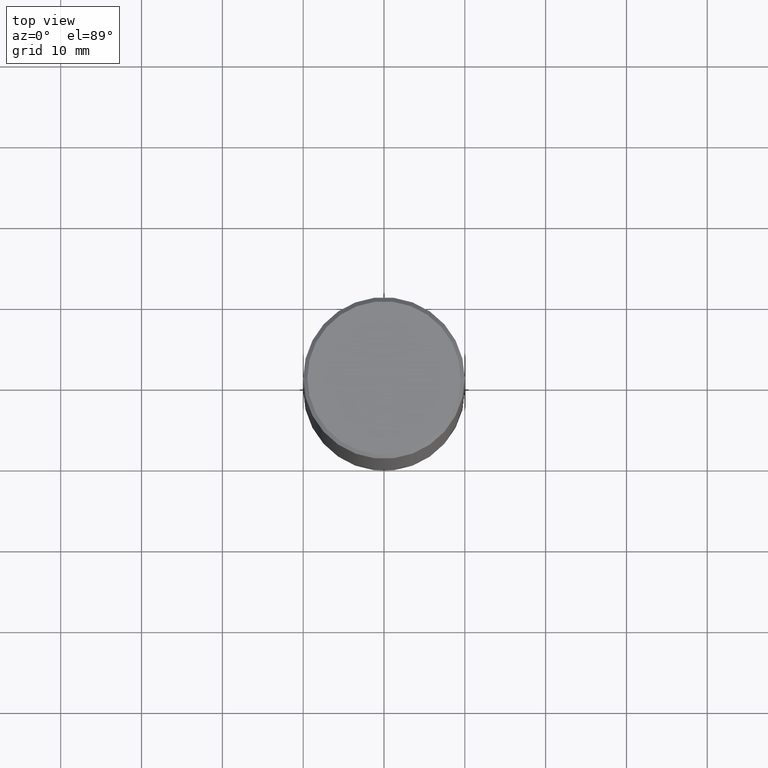
[diagram: clean part render]
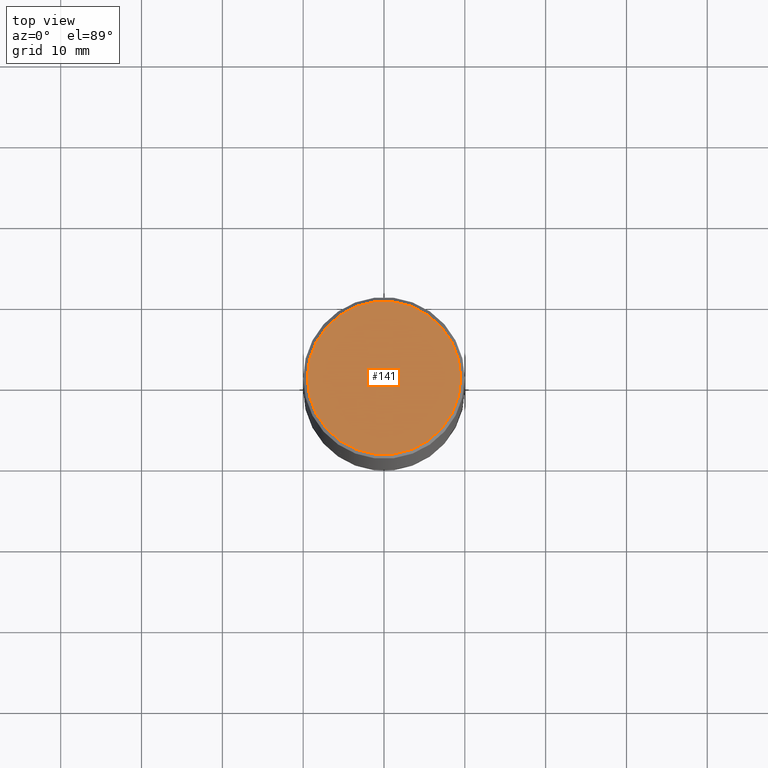
[diagram: same view with one face highlighted and labeled with its STEP entity id]
A machine part, top view. The second image highlights one B-rep face of the part: STEP entity #141.
In plain terms, the highlighted planar face has unit normal (0, -0, -1).
Its self-contained STEP definition (entity closure, byte-faithful):
#8 = AXIS2_PLACEMENT_3D ( 'NONE', #120, #230, #228 ) ;
#10 = EDGE_LOOP ( 'NONE', ( #183, #365 ) ) ;
#19 = AXIS2_PLACEMENT_3D ( 'NONE', #328, #103, #174 ) ;
#34 = VERTEX_POINT ( 'NONE', #227 ) ;
#57 = FACE_OUTER_BOUND ( 'NONE', #10, .T. ) ;
#103 = DIRECTION ( 'NONE',  ( 2.438088387897960049E-29, -3.491481338843145188E-15, -1.000000000000000000 ) ) ;
#120 = CARTESIAN_POINT ( 'NONE',  ( 3.131554243005659264E-46, -4.471029511141341874E-32, -1.280553747030123384E-17 ) ) ;
#141 = ADVANCED_FACE ( 'NONE', ( #57 ), #362, .F. ) ;
#165 = AXIS2_PLACEMENT_3D ( 'NONE', #224, #258, #168 ) ;
#168 = DIRECTION ( 'NONE',  ( 1.000000000000000000, -6.982962677686266711E-15, 4.876212485538978481E-29 ) ) ;
#174 = DIRECTION ( 'NONE',  ( -1.000000000000000000, 6.982962677686265922E-15, -4.876176775795935793E-29 ) ) ;
#183 = ORIENTED_EDGE ( 'NONE', *, *, #335, .T. ) ;
#224 = CARTESIAN_POINT ( 'NONE',  ( 3.131554243005659264E-46, -4.471029511141341874E-32, -1.280553747030123384E-17 ) ) ;
#227 = CARTESIAN_POINT ( 'NONE',  ( -0.3736999999999997546, 2.644447966039787480E-15, -1.280553747031960567E-17 ) ) ;
#228 = DIRECTION ( 'NONE',  ( 1.000000000000000000, -6.982962677686266711E-15, 4.876212485538978481E-29 ) ) ;
#230 = DIRECTION ( 'NONE',  ( -2.445468806185136597E-29, 3.491481338843145583E-15, 1.000000000000000000 ) ) ;
#232 = CIRCLE ( 'NONE', #8, 0.3736999999999997546 ) ;
#258 = DIRECTION ( 'NONE',  ( -2.445468806185136597E-29, 3.491481338843145583E-15, 1.000000000000000000 ) ) ;
#307 = VERTEX_POINT ( 'NONE', #323 ) ;
#322 = EDGE_CURVE ( 'NONE', #307, #34, #232, .T. ) ;
#323 = CARTESIAN_POINT ( 'NONE',  ( 0.3736999999999997546, -2.667287895133366781E-15, -1.280553747028278189E-17 ) ) ;
#328 = CARTESIAN_POINT ( 'NONE',  ( 2.609533152651355831E-15, 0.3736999999999997546, -1.311169345060833289E-15 ) ) ;
#335 = EDGE_CURVE ( 'NONE', #34, #307, #353, .T. ) ;
#353 = CIRCLE ( 'NONE', #165, 0.3736999999999997546 ) ;
#362 = PLANE ( 'NONE',  #19 ) ;
#365 = ORIENTED_EDGE ( 'NONE', *, *, #322, .T. ) ;